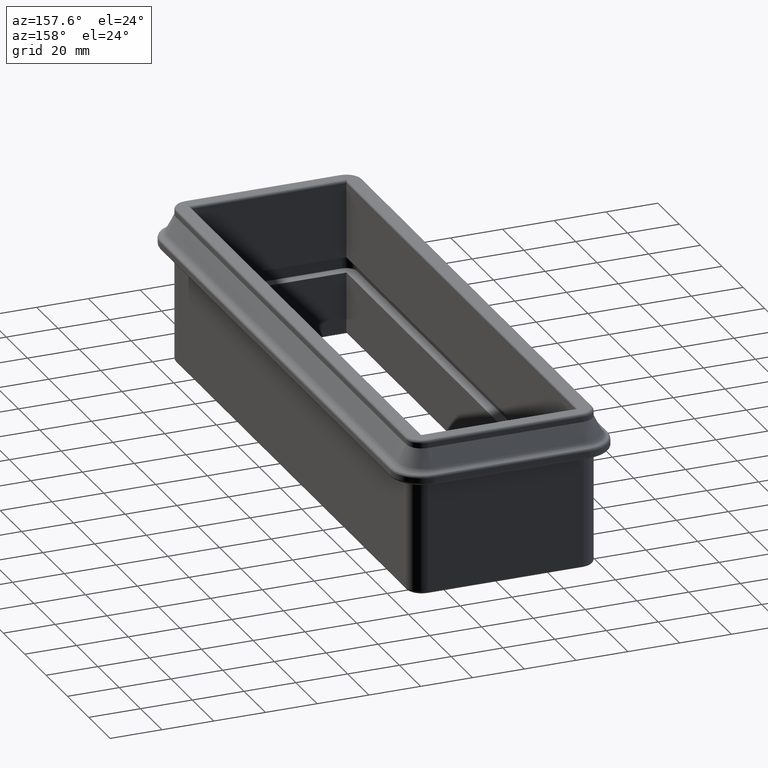
[diagram: clean part render]
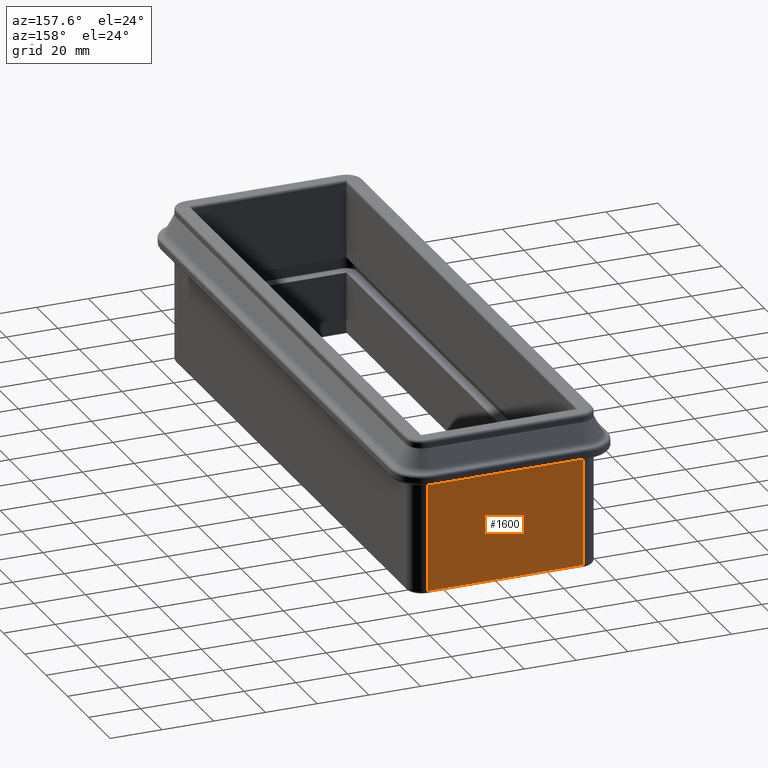
[diagram: same view with one face highlighted and labeled with its STEP entity id]
A machine part, auxiliary view. The second image highlights one B-rep face of the part: STEP entity #1600.
In plain terms, the highlighted planar face has unit normal (0, 1, 0).
Its self-contained STEP definition (entity closure, byte-faithful):
#30=PLANE('',#1770);
#113=FACE_OUTER_BOUND('',#222,.T.);
#222=EDGE_LOOP('',(#1144,#1145,#1146,#1147));
#332=LINE('',#2609,#460);
#337=LINE('',#2633,#465);
#338=LINE('',#2635,#466);
#339=LINE('',#2636,#467);
#460=VECTOR('',#2056,10.);
#465=VECTOR('',#2085,10.);
#466=VECTOR('',#2086,10.);
#467=VECTOR('',#2087,10.);
#704=VERTEX_POINT('',#2599);
#706=VERTEX_POINT('',#2605);
#714=VERTEX_POINT('',#2632);
#715=VERTEX_POINT('',#2634);
#862=EDGE_CURVE('',#704,#706,#332,.T.);
#874=EDGE_CURVE('',#704,#714,#337,.T.);
#875=EDGE_CURVE('',#715,#714,#338,.T.);
#876=EDGE_CURVE('',#706,#715,#339,.T.);
#1144=ORIENTED_EDGE('',*,*,#862,.F.);
#1145=ORIENTED_EDGE('',*,*,#874,.T.);
#1146=ORIENTED_EDGE('',*,*,#875,.F.);
#1147=ORIENTED_EDGE('',*,*,#876,.F.);
#1600=ADVANCED_FACE('',(#113),#30,.T.);
#1770=AXIS2_PLACEMENT_3D('',#2631,#2083,#2084);
#2056=DIRECTION('',(-1.,0.,0.));
#2083=DIRECTION('center_axis',(0.,1.,6.90805437544542E-16));
#2084=DIRECTION('ref_axis',(1.26898900188376E-31,6.90805437544542E-16,-1.));
#2085=DIRECTION('',(1.26898900188376E-31,6.90805437544542E-16,-1.));
#2086=DIRECTION('',(1.,0.,0.));
#2087=DIRECTION('',(1.26898900188376E-31,6.90805437544542E-16,-1.));
#2599=CARTESIAN_POINT('',(30.,114.,14.));
#2605=CARTESIAN_POINT('',(-30.,114.,14.));
#2609=CARTESIAN_POINT('',(-6.,114.,14.));
#2631=CARTESIAN_POINT('Origin',(30.,114.,15.));
#2632=CARTESIAN_POINT('',(30.,114.,-29.));
#2633=CARTESIAN_POINT('',(30.,114.,-30.));
#2634=CARTESIAN_POINT('',(-30.,114.,-29.));
#2635=CARTESIAN_POINT('',(-3.,114.,-29.));
#2636=CARTESIAN_POINT('',(-30.,114.,-30.));